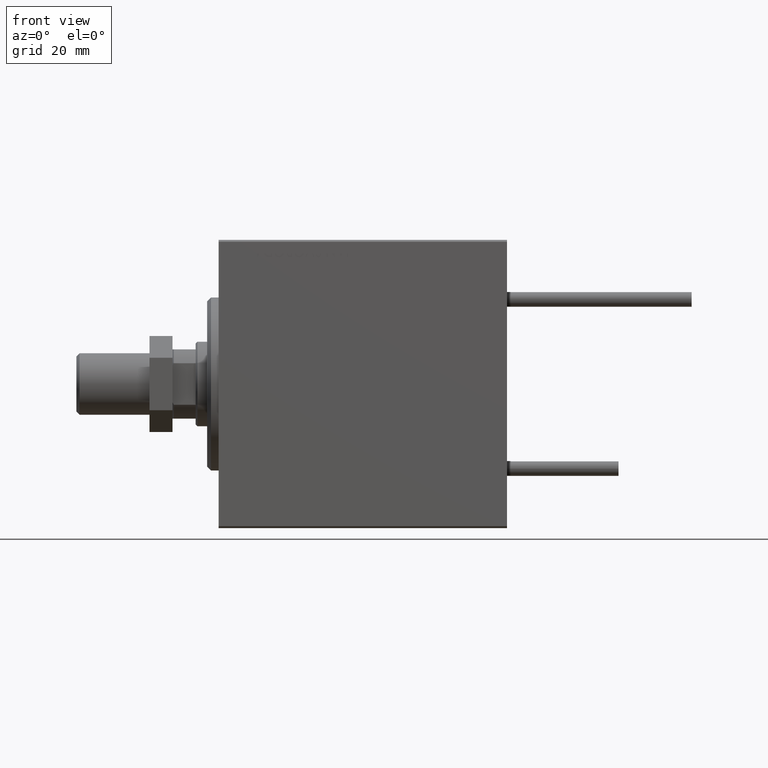
[diagram: clean part render]
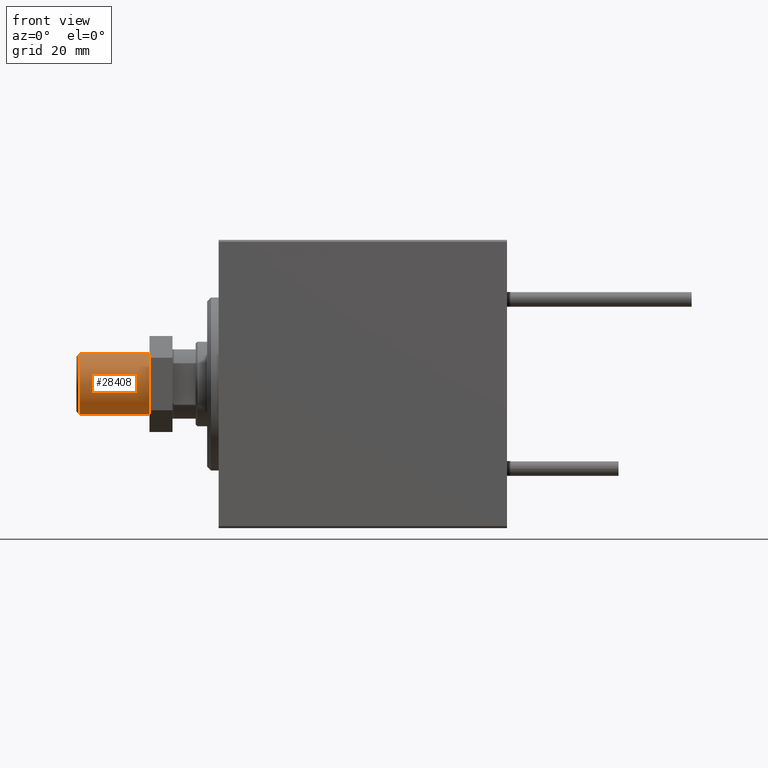
[diagram: same view with one face highlighted and labeled with its STEP entity id]
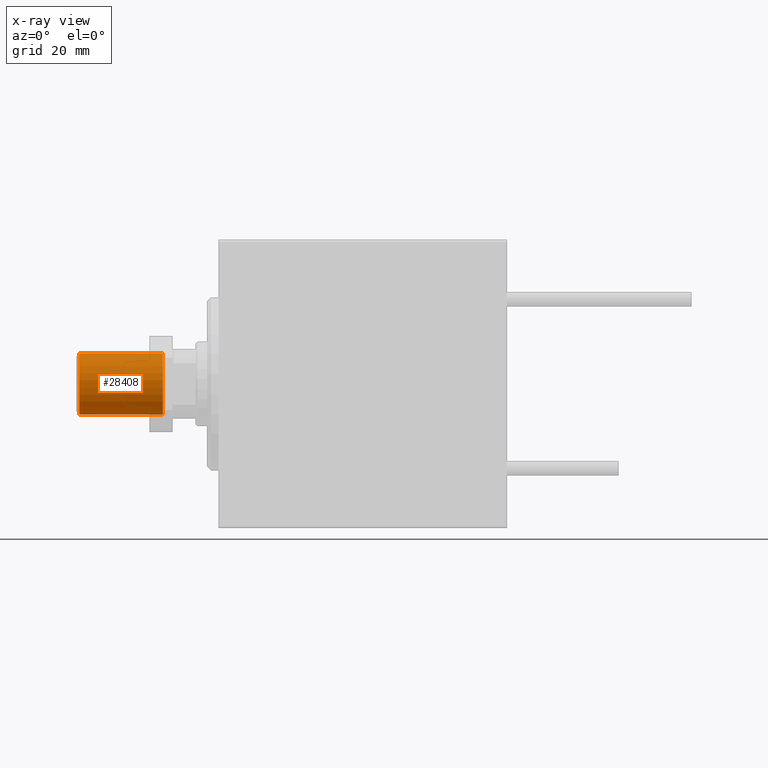
[diagram: x-ray of the same camera — body ghosted, the highlighted face saturated]
A machine part, front view. The second image highlights one B-rep face of the part: STEP entity #28408.
The next image is the same camera in x-ray: the body ghosted, the highlighted face saturated — about 0% of this face is hidden behind the body in this view.
In plain terms, the highlighted cylindrical surface (edge-blend (fillet) strip) has radius 8 mm, axis along (-1, -0, 0).
Its self-contained STEP definition (entity closure, byte-faithful):
#169 = FACE_OUTER_BOUND ( 'NONE', #6064, .T. ) ;
#335 = DIRECTION ( 'NONE',  ( -0.000000000000000000, -0.000000000000000000, 1.000000000000000000 ) ) ;
#4255 = CARTESIAN_POINT ( 'NONE',  ( 0.000000000000000000, 0.000000000000000000, 0.8000000000000160316 ) ) ;
#5417 = CARTESIAN_POINT ( 'NONE',  ( -8.000000000000000000, 0.000000000000000000, 22.50000000000000000 ) ) ;
#5874 = DIRECTION ( 'NONE',  ( -1.000000000000000000, 0.000000000000000000, 0.000000000000000000 ) ) ;
#6064 = EDGE_LOOP ( 'NONE', ( #23701, #21674, #32603, #37476 ) ) ;
#6645 = EDGE_CURVE ( 'NONE', #50324, #22234, #45000, .T. ) ;
#10356 = VECTOR ( 'NONE', #11050, 1000.000000000000000 ) ;
#11050 = DIRECTION ( 'NONE',  ( -0.000000000000000000, -0.000000000000000000, -1.000000000000000000 ) ) ;
#12438 = CARTESIAN_POINT ( 'NONE',  ( 8.000000000000000000, 9.797174393178823685E-16, 0.8000000000000160316 ) ) ;
#14950 = LINE ( 'NONE', #30864, #10356 ) ;
#16048 = CYLINDRICAL_SURFACE ( 'NONE', #44034, 8.000000000000000000 ) ;
#16481 = DIRECTION ( 'NONE',  ( 1.000000000000000000, 0.000000000000000000, 0.000000000000000000 ) ) ;
#21304 = DIRECTION ( 'NONE',  ( -0.000000000000000000, -0.000000000000000000, -1.000000000000000000 ) ) ;
#21470 = CARTESIAN_POINT ( 'NONE',  ( -8.000000000000000000, 0.000000000000000000, 22.50000000000000000 ) ) ;
#21674 = ORIENTED_EDGE ( 'NONE', *, *, #50161, .F. ) ;
#22234 = VERTEX_POINT ( 'NONE', #38075 ) ;
#23081 = DIRECTION ( 'NONE',  ( 1.000000000000000000, 0.000000000000000000, 0.000000000000000000 ) ) ;
#23701 = ORIENTED_EDGE ( 'NONE', *, *, #36700, .F. ) ;
#25196 = VECTOR ( 'NONE', #21304, 1000.000000000000000 ) ;
#25959 = DIRECTION ( 'NONE',  ( 0.000000000000000000, 0.000000000000000000, 1.000000000000000000 ) ) ;
#28408 = ADVANCED_FACE ( 'NONE', ( #169 ), #16048, .T. ) ;
#28579 = VERTEX_POINT ( 'NONE', #50667 ) ;
#28979 = AXIS2_PLACEMENT_3D ( 'NONE', #42868, #25959, #23081 ) ;
#30864 = CARTESIAN_POINT ( 'NONE',  ( 8.000000000000000000, 9.797174393178823685E-16, 22.50000000000000000 ) ) ;
#31959 = CARTESIAN_POINT ( 'NONE',  ( 0.000000000000000000, 0.000000000000000000, 22.50000000000000000 ) ) ;
#32603 = ORIENTED_EDGE ( 'NONE', *, *, #6645, .T. ) ;
#36700 = EDGE_CURVE ( 'NONE', #28579, #42854, #14950, .T. ) ;
#37326 = CIRCLE ( 'NONE', #28979, 8.000000000000000000 ) ;
#37476 = ORIENTED_EDGE ( 'NONE', *, *, #47402, .T. ) ;
#38075 = CARTESIAN_POINT ( 'NONE',  ( -8.000000000000000000, 0.000000000000000000, 0.8000000000000160316 ) ) ;
#42854 = VERTEX_POINT ( 'NONE', #12438 ) ;
#42868 = CARTESIAN_POINT ( 'NONE',  ( 0.000000000000000000, 0.000000000000000000, 22.50000000000000000 ) ) ;
#44034 = AXIS2_PLACEMENT_3D ( 'NONE', #31959, #47834, #5874 ) ;
#45000 = LINE ( 'NONE', #5417, #25196 ) ;
#46385 = CIRCLE ( 'NONE', #47213, 8.000000000000000000 ) ;
#47213 = AXIS2_PLACEMENT_3D ( 'NONE', #4255, #335, #16481 ) ;
#47402 = EDGE_CURVE ( 'NONE', #22234, #42854, #46385, .T. ) ;
#47834 = DIRECTION ( 'NONE',  ( -0.000000000000000000, -0.000000000000000000, -1.000000000000000000 ) ) ;
#50161 = EDGE_CURVE ( 'NONE', #50324, #28579, #37326, .T. ) ;
#50324 = VERTEX_POINT ( 'NONE', #21470 ) ;
#50667 = CARTESIAN_POINT ( 'NONE',  ( 8.000000000000000000, 9.797174393178823685E-16, 22.50000000000000000 ) ) ;